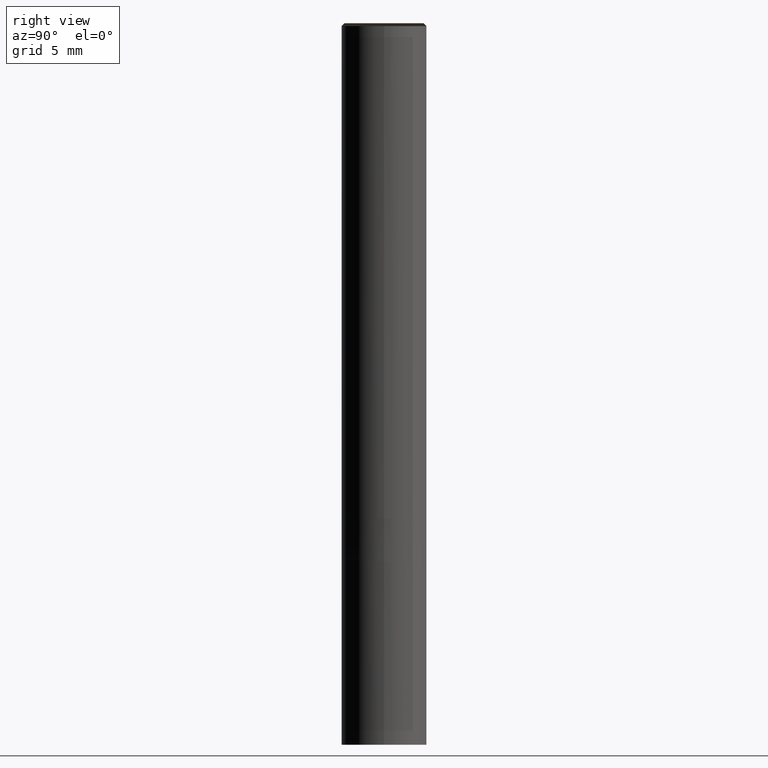
[diagram: clean part render]
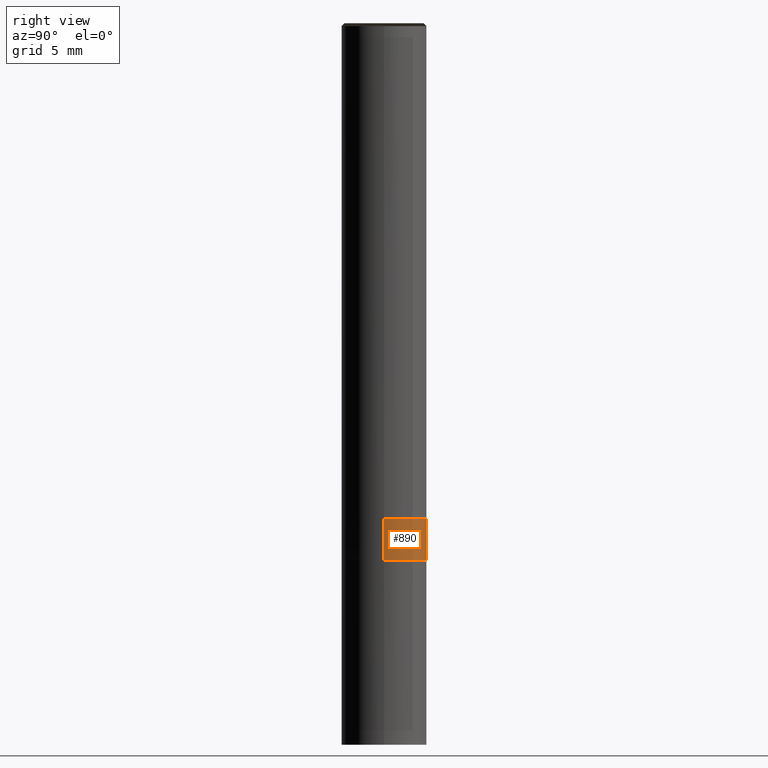
[diagram: same view with one face highlighted and labeled with its STEP entity id]
A machine part, right view. The second image highlights one B-rep face of the part: STEP entity #890.
In plain terms, the highlighted face is a freeform B-spline surface patch.
Its self-contained STEP definition (entity closure, byte-faithful):
#705=CARTESIAN_POINT('',(3.0,0.0,-3.0));
#706=CARTESIAN_POINT('',(3.0,3.0,-3.0));
#707=CARTESIAN_POINT('',(0.0,3.0,-3.0));
#708=CARTESIAN_POINT('',(-3.0,3.0,-3.0));
#709=CARTESIAN_POINT('',(-3.0,0.0,-3.0));
#716=CARTESIAN_POINT('',(3.0,0.0,0.0));
#717=CARTESIAN_POINT('',(3.0,3.0,0.0));
#718=CARTESIAN_POINT('',(0.0,3.0,0.0));
#719=CARTESIAN_POINT('',(-3.0,3.0,0.0));
#720=CARTESIAN_POINT('',(-3.0,0.0,0.0));
#871=(
BOUNDED_SURFACE()
B_SPLINE_SURFACE(1,2,(
(#705,#706,#707,#708,#709),
(#716,#717,#718,#719,#720)
), .UNSPECIFIED.,.F.,.F.,.F.)
B_SPLINE_SURFACE_WITH_KNOTS((2,2),(3,2,3),(
0.0,1.0),(
0.0,0.5,1.0), .UNSPECIFIED.)
GEOMETRIC_REPRESENTATION_ITEM()
RATIONAL_B_SPLINE_SURFACE(((1.0,0.707106781187,1.0,0.707106781187,1.0),
(1.0,0.707106781187,1.0,0.707106781187,1.0)
))
REPRESENTATION_ITEM('')
SURFACE()
);
#872=(
BOUNDED_CURVE()
B_SPLINE_CURVE(2,(#709,#708,#707,#706,#705),.UNSPECIFIED.,.F.,.F.)
B_SPLINE_CURVE_WITH_KNOTS((3,2,3),
(0.0,0.5,1.0),.UNSPECIFIED.)
CURVE()
GEOMETRIC_REPRESENTATION_ITEM()
RATIONAL_B_SPLINE_CURVE((1.0,0.707106781187,1.0,0.707106781187,1.0))
REPRESENTATION_ITEM('')
);
#873=(
BOUNDED_CURVE()
B_SPLINE_CURVE(1,(#705,#716),.UNSPECIFIED.,.F.,.F.)
B_SPLINE_CURVE_WITH_KNOTS((2,2),
(0.0,1.0),.UNSPECIFIED.)
CURVE()
GEOMETRIC_REPRESENTATION_ITEM()
RATIONAL_B_SPLINE_CURVE((1.0,1.0))
REPRESENTATION_ITEM('')
);
#874=(
BOUNDED_CURVE()
B_SPLINE_CURVE(2,(#716,#717,#718,#719,#720),.UNSPECIFIED.,.F.,.F.)
B_SPLINE_CURVE_WITH_KNOTS((3,2,3),
(0.0,0.5,1.0),.UNSPECIFIED.)
CURVE()
GEOMETRIC_REPRESENTATION_ITEM()
RATIONAL_B_SPLINE_CURVE((1.0,0.707106781187,1.0,0.707106781187,1.0))
REPRESENTATION_ITEM('')
);
#875=(
BOUNDED_CURVE()
B_SPLINE_CURVE(1,(#720,#709),.UNSPECIFIED.,.F.,.F.)
B_SPLINE_CURVE_WITH_KNOTS((2,2),
(0.0,1.0),.UNSPECIFIED.)
CURVE()
GEOMETRIC_REPRESENTATION_ITEM()
RATIONAL_B_SPLINE_CURVE((1.0,1.0))
REPRESENTATION_ITEM('')
);
#876=VERTEX_POINT('',#705);
#877=VERTEX_POINT('',#709);
#878=VERTEX_POINT('',#716);
#879=VERTEX_POINT('',#720);
#880=EDGE_CURVE('',#877,#876,#872,.T.);
#881=EDGE_CURVE('',#876,#878,#873,.T.);
#882=EDGE_CURVE('',#878,#879,#874,.T.);
#883=EDGE_CURVE('',#879,#877,#875,.T.);
#884=ORIENTED_EDGE('',*,*,#880,.T.);
#885=ORIENTED_EDGE('',*,*,#881,.T.);
#886=ORIENTED_EDGE('',*,*,#882,.T.);
#887=ORIENTED_EDGE('',*,*,#883,.T.);
#888=EDGE_LOOP('',(#884,#885,#886,#887));
#889=FACE_OUTER_BOUND('',#888,.T.);
#890=ADVANCED_FACE('',(#889),#871,.T.);